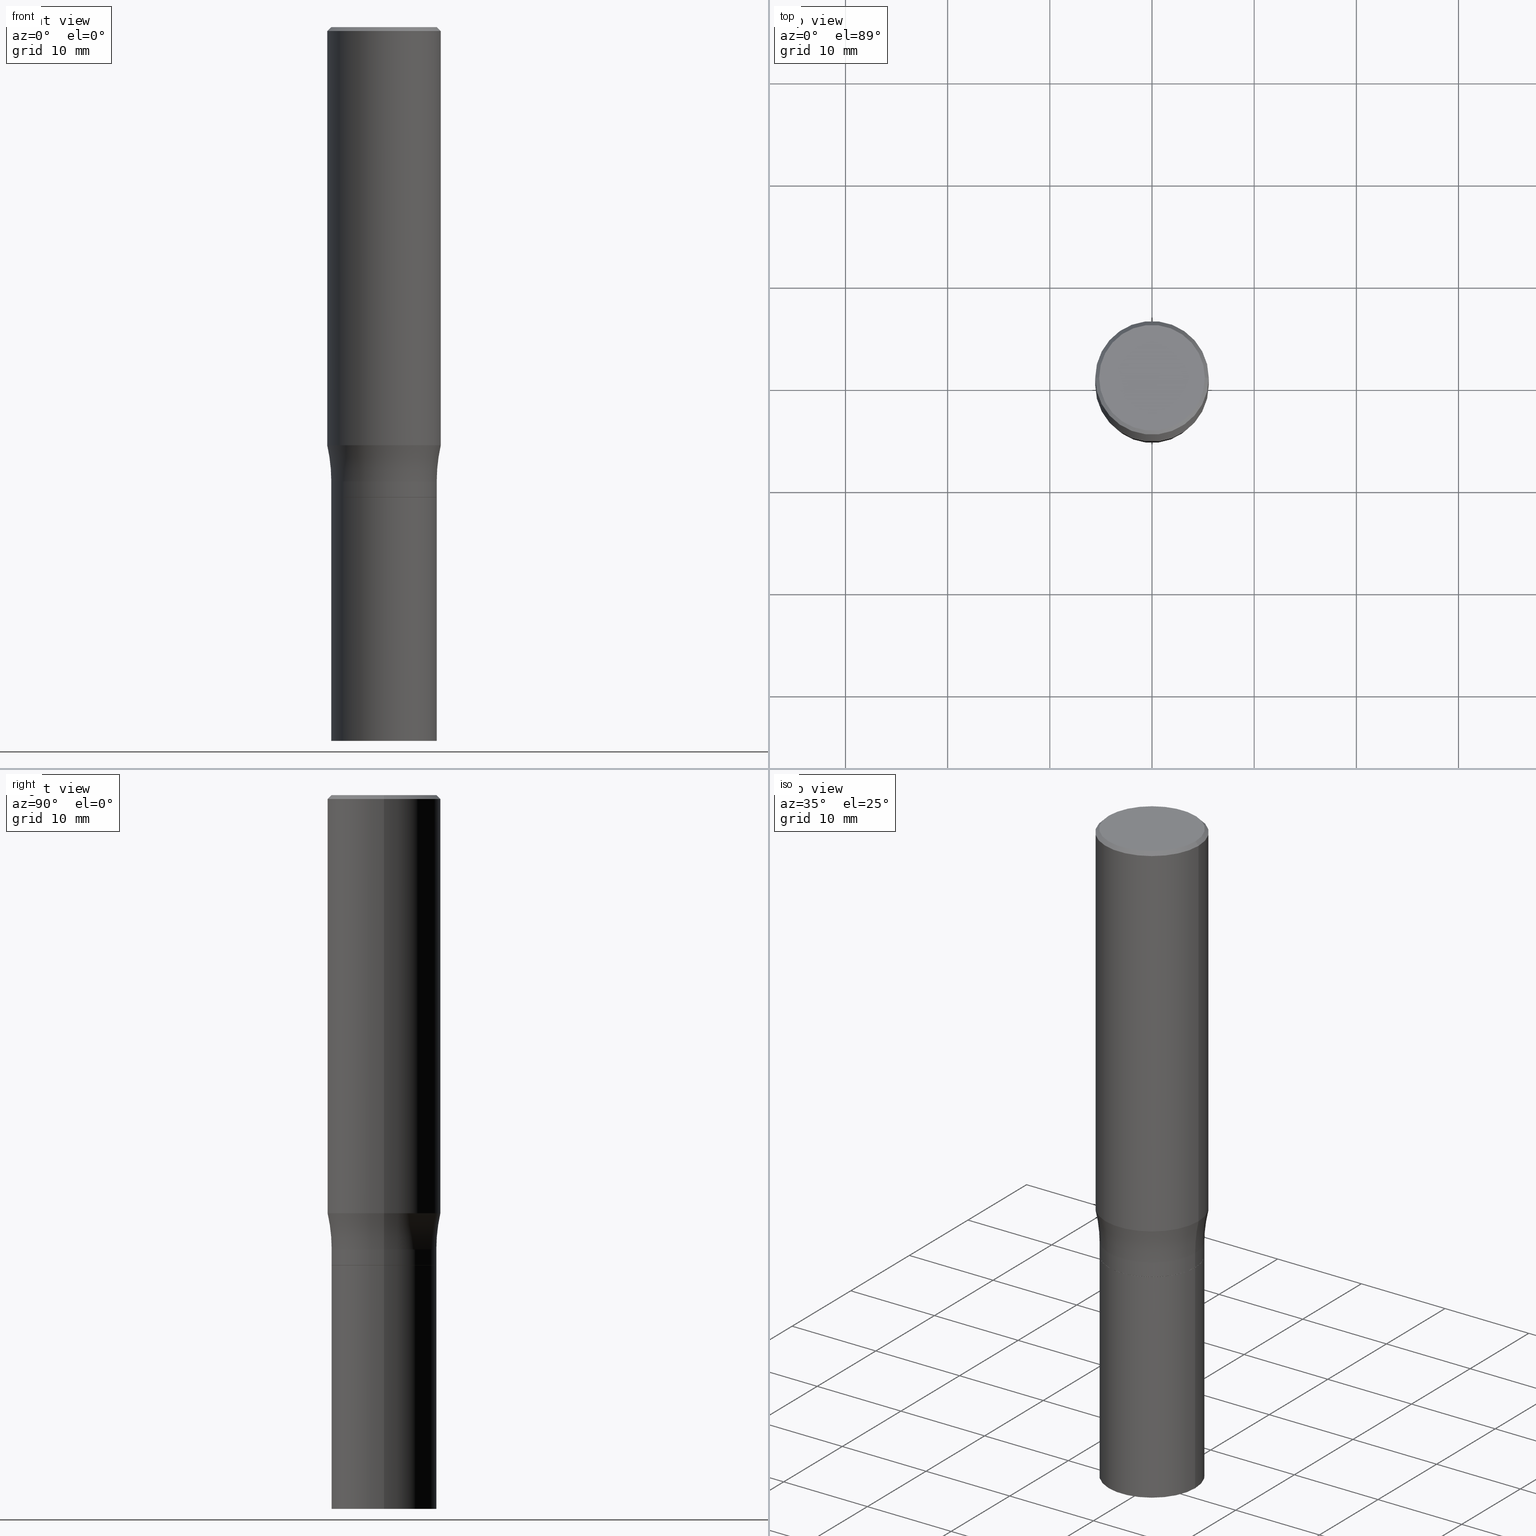
[diagram: canonical four-view strip — front | top / right | iso, engineering-drawing reading convention]
A machine part, canonical four-view strip (front | top / right | iso — engineering-drawing reading convention). The complete STEP part file that produces these views, byte-faithful:
ISO-10303-21;
HEADER;
FILE_DESCRIPTION (( 'STEP AP203' ),
    '1' );
FILE_NAME ('36531.STEP',
    '2024-03-04T15:28:28',
    ( '' ),
    ( '' ),
    'SwSTEP 2.0',
    'SolidWorks 2023',
    '' );
FILE_SCHEMA (( 'CONFIG_CONTROL_DESIGN' ));
ENDSEC;

DATA;
#1 = CC_DESIGN_PERSON_AND_ORGANIZATION_ASSIGNMENT ( #176, #170, ( #276 ) ) ;
#2 = CLOSED_SHELL ( 'NONE', ( #117, #6, #31, #65 ) ) ;
#3 = CONICAL_SURFACE ( 'NONE', #381, 0.2187500000000000000, 0.7853981633974522758 ) ;
#4 = DIRECTION ( 'NONE',  ( -2.445468806185136877E-29, 3.491481338843145188E-15, 1.000000000000000000 ) ) ;
#5 = CARTESIAN_POINT ( 'NONE',  ( 4.431189476807467280E-29, -6.326564185983779791E-15, -1.812000000000000055 ) ) ;
#6 = ADVANCED_FACE ( 'NONE', ( #313 ), #75, .F. ) ;
#7 = CARTESIAN_POINT ( 'NONE',  ( 4.279570410823988484E-29, -6.110092342975504671E-15, -1.750000000000000000 ) ) ;
#8 = DIRECTION ( 'NONE',  ( 1.000000000000000000, -6.982962677686266711E-15, 0.000000000000000000 ) ) ;
#9 = DIRECTION ( 'NONE',  ( -2.445468806185136597E-29, 3.491481338843145583E-15, 1.000000000000000000 ) ) ;
#10 = FACE_OUTER_BOUND ( 'NONE', #425, .T. ) ;
#11 = AXIS2_PLACEMENT_3D ( 'NONE', #187, #265, #194 ) ;
#12 = CIRCLE ( 'NONE', #466, 0.2030999999999999750 ) ;
#13 = LINE ( 'NONE', #224, #209 ) ;
#14 = DIRECTION ( 'NONE',  ( 1.000000000000000000, -6.982962677686266711E-15, 4.883557194083112901E-29 ) ) ;
#15 = EDGE_LOOP ( 'NONE', ( #312, #392, #34, #119 ) ) ;
#16 = DIRECTION ( 'NONE',  ( -0.7071067811865715536, 7.493145998870439357E-15, 0.7071067811865232589 ) ) ;
#17 = ORIENTED_EDGE ( 'NONE', *, *, #394, .F. ) ;
#18 = DIMENSIONAL_EXPONENTS ( 1.000000000000000000, 0.000000000000000000, 0.000000000000000000, 0.000000000000000000, 0.000000000000000000, 0.000000000000000000, 0.000000000000000000 ) ;
#19 = CARTESIAN_POINT ( 'NONE',  ( 0.2030999999999999750, -7.744803905821859777E-15, -1.812000000000000055 ) ) ;
#20 = ORIENTED_EDGE ( 'NONE', *, *, #90, .F. ) ;
#21 = CIRCLE ( 'NONE', #301, 0.2031000000000001970 ) ;
#22 = CIRCLE ( 'NONE', #177, 0.2037499999999999867 ) ;
#23 = ORIENTED_EDGE ( 'NONE', *, *, #291, .F. ) ;
#24 = PERSON_AND_ORGANIZATION ( #95, #86 ) ;
#25 = CYLINDRICAL_SURFACE ( 'NONE', #309, 0.2030999999999999750 ) ;
#26 = COORDINATED_UNIVERSAL_TIME_OFFSET ( 5, 0, .BEHIND. ) ;
#27 = EDGE_CURVE ( 'NONE', #108, #305, #36, .T. ) ;
#28 = FACE_OUTER_BOUND ( 'NONE', #223, .T. ) ;
#29 = CYLINDRICAL_SURFACE ( 'NONE', #230, 0.2031000000000001415 ) ;
#30 = APPROVAL_STATUS ( 'not_yet_approved' ) ;
#31 = ADVANCED_FACE ( 'NONE', ( #467 ), #25, .T. ) ;
#32 = ORIENTED_EDGE ( 'NONE', *, *, #304, .F. ) ;
#33 = APPLICATION_CONTEXT ( 'configuration controlled 3d designs of mechanical parts and assemblies' ) ;
#34 = ORIENTED_EDGE ( 'NONE', *, *, #315, .T. ) ;
#35 = DIRECTION ( 'NONE',  ( -2.445468806185136597E-29, 3.491481338843145583E-15, 1.000000000000000000 ) ) ;
#36 = LINE ( 'NONE', #183, #390 ) ;
#37 = PRODUCT_DEFINITION ( 'UNKNOWN', '', #325, #460 ) ;
#38 = VECTOR ( 'NONE', #161, 39.37007874015748143 ) ;
#39 = DIRECTION ( 'NONE',  ( -2.445468806185136597E-29, 3.491481338843145583E-15, 1.000000000000000000 ) ) ;
#40 = EDGE_CURVE ( 'NONE', #454, #376, #239, .T. ) ;
#41 = DIRECTION ( 'NONE',  ( 1.000000000000000000, -6.982962677686267499E-15, 0.000000000000000000 ) ) ;
#42 = FACE_OUTER_BOUND ( 'NONE', #118, .T. ) ;
#43 = ADVANCED_BREP_SHAPE_REPRESENTATION ( '36531', ( #80, #237, #98 ), #457 ) ;
#44 = AXIS2_PLACEMENT_3D ( 'NONE', #185, #327, #293 ) ;
#45 = LOCAL_TIME ( 10, 28, 28.00000000000000000, #26 ) ;
#46 = DIRECTION ( 'NONE',  ( 1.000000000000000000, -6.982962677686267499E-15, 0.000000000000000000 ) ) ;
#47 = DIRECTION ( 'NONE',  ( 1.000000000000000000, -6.982962677686266711E-15, 4.876176775795935232E-29 ) ) ;
#48 = CARTESIAN_POINT ( 'NONE',  ( 3.668203209277705088E-31, -5.237222008264718399E-17, -0.01499999999999999944 ) ) ;
#49 = CARTESIAN_POINT ( 'NONE',  ( 4.279570410823988484E-29, -6.110092342975504671E-15, -1.750000000000000000 ) ) ;
#50 = ORIENTED_EDGE ( 'NONE', *, *, #281, .T. ) ;
#51 = CC_DESIGN_PERSON_AND_ORGANIZATION_ASSIGNMENT ( #343, #222, ( #37 ) ) ;
#52 = LINE ( 'NONE', #330, #38 ) ;
#53 = CYLINDRICAL_SURFACE ( 'NONE', #401, 0.2187500000000000278 ) ;
#54 = CONICAL_SURFACE ( 'NONE', #138, 0.2025999999999999746, 0.7853981633974824739 ) ;
#55 = CARTESIAN_POINT ( 'NONE',  ( -0.2031000000000001415, 1.443112296328764483E-15, -9.990357168307721209E-30 ) ) ;
#56 = CYLINDRICAL_SURFACE ( 'NONE', #451, 0.2031000000000001415 ) ;
#57 = ORIENTED_EDGE ( 'NONE', *, *, #360, .T. ) ;
#58 = CC_DESIGN_PERSON_AND_ORGANIZATION_ASSIGNMENT ( #24, #354, ( #325 ) ) ;
#59 = ORIENTED_EDGE ( 'NONE', *, *, #243, .F. ) ;
#60 = ADVANCED_FACE ( 'NONE', ( #28 ), #129, .T. ) ;
#61 = PERSON_AND_ORGANIZATION ( #95, #86 ) ;
#62 = AXIS2_PLACEMENT_3D ( 'NONE', #159, #413, #207 ) ;
#63 = LOCAL_TIME ( 10, 28, 28.00000000000000000, #320 ) ;
#64 = EDGE_LOOP ( 'NONE', ( #133, #100, #97, #353 ) ) ;
#65 = ADVANCED_FACE ( 'NONE', ( #408 ), #446, .F. ) ;
#66 = ORIENTED_EDGE ( 'NONE', *, *, #453, .T. ) ;
#67 = SECURITY_CLASSIFICATION_LEVEL ( 'unclassified' ) ;
#68 = ADVANCED_FACE ( 'NONE', ( #166 ), #245, .T. ) ;
#69 = ORIENTED_EDGE ( 'NONE', *, *, #193, .F. ) ;
#70 = CLOSED_SHELL ( 'NONE', ( #149, #461, #60, #210, #352, #192, #322, #206, #225, #82, #68, #415 ) ) ;
#71 = ORIENTED_EDGE ( 'NONE', *, *, #193, .T. ) ;
#72 = APPROVAL_ROLE ( '' ) ;
#73 = EDGE_CURVE ( 'NONE', #199, #395, #128, .T. ) ;
#74 = EDGE_CURVE ( 'NONE', #419, #305, #275, .T. ) ;
#75 = PLANE ( 'NONE',  #380 ) ;
#76 = PRODUCT ( '36531', '36531', '', ( #244 ) ) ;
#77 = FACE_OUTER_BOUND ( 'NONE', #103, .T. ) ;
#78 = CARTESIAN_POINT ( 'NONE',  ( -0.2037499999999999867, 1.448964755619900027E-15, -1.094037480906238857E-16 ) ) ;
#79 = TOROIDAL_SURFACE ( 'NONE', #391, 0.8281000000000000583, 0.6250000000000000000 ) ;
#80 = MANIFOLD_SOLID_BREP ( 'Body-Move/Copy2[1]', #2 ) ;
#81 =( CONVERSION_BASED_UNIT ( 'INCH', #186 ) LENGTH_UNIT ( ) NAMED_UNIT ( #18 ) );
#82 = ADVANCED_FACE ( 'NONE', ( #195 ), #269, .F. ) ;
#83 = DIRECTION ( 'NONE',  ( -2.445468806185136877E-29, 3.491481338843145188E-15, 1.000000000000000000 ) ) ;
#84 = CARTESIAN_POINT ( 'NONE',  ( 0.2030999999999999750, -1.418239719838080578E-15, 9.903515031641544743E-30 ) ) ;
#85 = CIRCLE ( 'NONE', #219, 0.2030999999999999750 ) ;
#86 = ORGANIZATION ( 'UNSPECIFIED', 'UNSPECIFIED', '' ) ;
#87 = PLANE ( 'NONE',  #259 ) ;
#88 = DIRECTION ( 'NONE',  ( 2.438088387897960049E-29, -3.491481338843145188E-15, -1.000000000000000000 ) ) ;
#89 = DIRECTION ( 'NONE',  ( 2.445468806185136597E-29, -3.491481338843145583E-15, -1.000000000000000000 ) ) ;
#90 = EDGE_CURVE ( 'NONE', #454, #93, #131, .T. ) ;
#91 = DIRECTION ( 'NONE',  ( 1.000000000000000000, -6.982962677686266711E-15, 4.876176775795935793E-29 ) ) ;
#92 = CARTESIAN_POINT ( 'NONE',  ( 0.2025999999999999746, -7.741312424483018348E-15, -1.812000000000000277 ) ) ;
#93 = VERTEX_POINT ( 'NONE', #306 ) ;
#94 = DIRECTION ( 'NONE',  ( -2.445468806185136877E-29, 3.491481338843145188E-15, 1.000000000000000000 ) ) ;
#95 = PERSON ( 'UNSPECIFIED', 'UNSPECIFIED', 'UNSPECIFIED', ('UNSPECIFIED'), ('UNSPECIFIED'), ('UNSPECIFIED') ) ;
#96 = AXIS2_PLACEMENT_3D ( 'NONE', #410, #231, #91 ) ;
#97 = ORIENTED_EDGE ( 'NONE', *, *, #291, .T. ) ;
#98 = AXIS2_PLACEMENT_3D ( 'NONE', #154, #297, #220 ) ;
#99 = CARTESIAN_POINT ( 'NONE',  ( -0.2025999999999999746, -4.884355376159706386E-15, -1.812000000000000277 ) ) ;
#100 = ORIENTED_EDGE ( 'NONE', *, *, #294, .T. ) ;
#101 = DATE_TIME_ROLE ( 'creation_date' ) ;
#102 = CARTESIAN_POINT ( 'NONE',  ( 4.431189476807467841E-29, -6.326564185983780580E-15, -1.812000000000000277 ) ) ;
#103 = EDGE_LOOP ( 'NONE', ( #150, #280, #112, #277 ) ) ;
#104 = APPLICATION_PROTOCOL_DEFINITION ( 'international standard', 'config_control_design', 1994, #33 ) ;
#105 = AXIS2_PLACEMENT_3D ( 'NONE', #211, #283, #426 ) ;
#106 = DIRECTION ( 'NONE',  ( -2.445468806185136597E-29, 3.491481338843145583E-15, 1.000000000000000000 ) ) ;
#107 = UNCERTAINTY_MEASURE_WITH_UNIT (LENGTH_MEASURE( 1.000000000000000082E-05 ), #81, 'distance_accuracy_value', 'NONE');
#108 = VERTEX_POINT ( 'NONE', #257 ) ;
#109 = APPROVAL ( #463, 'UNSPECIFIED' ) ;
#110 = CARTESIAN_POINT ( 'NONE',  ( 0.2187500000000000000, -1.553106157095169608E-15, -0.01499999999999999944 ) ) ;
#111 = APPROVAL_DATE_TIME ( #212, #286 ) ;
#112 = ORIENTED_EDGE ( 'NONE', *, *, #200, .F. ) ;
#113 = DATE_AND_TIME ( #351, #130 ) ;
#114 = VERTEX_POINT ( 'NONE', #238 ) ;
#115 = SHAPE_DEFINITION_REPRESENTATION ( #120, #43 ) ;
#116 = VECTOR ( 'NONE', #94, 39.37007874015748143 ) ;
#117 = ADVANCED_FACE ( 'NONE', ( #10 ), #335, .T. ) ;
#118 = EDGE_LOOP ( 'NONE', ( #319, #66, #429, #450 ) ) ;
#119 = ORIENTED_EDGE ( 'NONE', *, *, #243, .T. ) ;
#120 = PRODUCT_DEFINITION_SHAPE ( 'NONE', 'NONE',  #37 ) ;
#121 = EDGE_CURVE ( 'NONE', #199, #181, #329, .T. ) ;
#122 = DIRECTION ( 'NONE',  ( -1.000000000000000000, 7.105427357601001859E-15, 0.000000000000000000 ) ) ;
#123 = FACE_OUTER_BOUND ( 'NONE', #372, .T. ) ;
#124 = DIRECTION ( 'NONE',  ( 1.000000000000000000, -6.982962677686266711E-15, 4.876176775795936353E-29 ) ) ;
#125 = DIRECTION ( 'NONE',  ( 1.000000000000000000, -6.982962677686265922E-15, 4.876176775795935793E-29 ) ) ;
#126 = CARTESIAN_POINT ( 'NONE',  ( 4.429966742404375039E-29, -6.324818445314358287E-15, -1.811500000000000110 ) ) ;
#127 = DIRECTION ( 'NONE',  ( -2.445468806185136597E-29, 3.491481338843145583E-15, 1.000000000000000000 ) ) ;
#128 = LINE ( 'NONE', #266, #423 ) ;
#129 = CONICAL_SURFACE ( 'NONE', #324, 0.2025999999999999746, 0.7853981633974824739 ) ;
#130 = LOCAL_TIME ( 10, 28, 28.00000000000000000, #384 ) ;
#131 = LINE ( 'NONE', #442, #116 ) ;
#132 = DIRECTION ( 'NONE',  ( 0.7071067811865715536, -2.468850131082509496E-15, 0.7071067811865232589 ) ) ;
#133 = ORIENTED_EDGE ( 'NONE', *, *, #180, .F. ) ;
#134 = DIRECTION ( 'NONE',  ( -1.000000000000000000, 6.982962677686266711E-15, 0.000000000000000000 ) ) ;
#135 = EDGE_LOOP ( 'NONE', ( #434, #165, #462, #171 ) ) ;
#136 = EDGE_CURVE ( 'NONE', #292, #419, #52, .T. ) ;
#137 = DIRECTION ( 'NONE',  ( -2.445468806185136597E-29, 3.491481338843145583E-15, 1.000000000000000000 ) ) ;
#138 = AXIS2_PLACEMENT_3D ( 'NONE', #102, #447, #214 ) ;
#139 = APPROVAL_DATE_TIME ( #113, #366 ) ;
#140 = ORIENTED_EDGE ( 'NONE', *, *, #389, .F. ) ;
#141 = FACE_OUTER_BOUND ( 'NONE', #388, .T. ) ;
#142 = EDGE_LOOP ( 'NONE', ( #20, #433, #321, #32 ) ) ;
#143 = DATE_AND_TIME ( #430, #363 ) ;
#144 = AXIS2_PLACEMENT_3D ( 'NONE', #340, #405, #8 ) ;
#145 = ORIENTED_EDGE ( 'NONE', *, *, #74, .T. ) ;
#146 = CALENDAR_DATE ( 2024, 4, 3 ) ;
#147 = EDGE_LOOP ( 'NONE', ( #382, #379, #448, #242 ) ) ;
#148 = DATE_AND_TIME ( #387, #302 ) ;
#149 = ADVANCED_FACE ( 'NONE', ( #77 ), #303, .T. ) ;
#150 = ORIENTED_EDGE ( 'NONE', *, *, #178, .T. ) ;
#151 = ORIENTED_EDGE ( 'NONE', *, *, #182, .F. ) ;
#152 = EDGE_CURVE ( 'NONE', #114, #419, #13, .T. ) ;
#153 = CIRCLE ( 'NONE', #62, 0.2187500000000000278 ) ;
#154 = CARTESIAN_POINT ( 'NONE',  ( 0.000000000000000000, 0.000000000000000000, 0.000000000000000000 ) ) ;
#155 = FACE_OUTER_BOUND ( 'NONE', #15, .T. ) ;
#156 = CARTESIAN_POINT ( 'NONE',  ( 2.675434532353328846E-45, -3.819811448578746494E-31, -1.094037480906138524E-16 ) ) ;
#157 = DIRECTION ( 'NONE',  ( 1.000000000000000000, -6.982962677686265133E-15, 0.000000000000000000 ) ) ;
#158 = PRODUCT_RELATED_PRODUCT_CATEGORY ( 'detail', '', ( #76 ) ) ;
#159 = CARTESIAN_POINT ( 'NONE',  ( 3.939680354633564561E-29, -5.624819422934269766E-15, -1.611012311696323307 ) ) ;
#160 = FACE_OUTER_BOUND ( 'NONE', #246, .T. ) ;
#161 = DIRECTION ( 'NONE',  ( -0.7071067811865503483, 2.468850131082286248E-15, -0.7071067811865446862 ) ) ;
#162 = AXIS2_PLACEMENT_3D ( 'NONE', #435, #217, #258 ) ;
#163 = DIRECTION ( 'NONE',  ( 0.7071067811865503483, -7.319954787623265512E-15, -0.7071067811865446862 ) ) ;
#164 = CARTESIAN_POINT ( 'NONE',  ( -0.2030999999999999750, -6.520956637572451722E-15, -2.750000000000000000 ) ) ;
#165 = ORIENTED_EDGE ( 'NONE', *, *, #213, .T. ) ;
#166 = FACE_OUTER_BOUND ( 'NONE', #339, .T. ) ;
#167 = ORIENTED_EDGE ( 'NONE', *, *, #90, .T. ) ;
#168 = EDGE_CURVE ( 'NONE', #290, #305, #375, .T. ) ;
#169 = ORIENTED_EDGE ( 'NONE', *, *, #136, .T. ) ;
#170 = PERSON_AND_ORGANIZATION_ROLE ( 'classification_officer' ) ;
#171 = ORIENTED_EDGE ( 'NONE', *, *, #74, .F. ) ;
#172 = PERSON_AND_ORGANIZATION ( #95, #86 ) ;
#173 = DIRECTION ( 'NONE',  ( -2.445468806185136597E-29, 3.491481338843145583E-15, 1.000000000000000000 ) ) ;
#174 = DIRECTION ( 'NONE',  ( -2.438088387897960049E-29, 3.491481338843145188E-15, 1.000000000000000000 ) ) ;
#175 = VECTOR ( 'NONE', #398, 39.37007874015748143 ) ;
#176 = PERSON_AND_ORGANIZATION ( #95, #86 ) ;
#177 = AXIS2_PLACEMENT_3D ( 'NONE', #406, #409, #236 ) ;
#178 = EDGE_CURVE ( 'NONE', #108, #114, #153, .T. ) ;
#179 = CARTESIAN_POINT ( 'NONE',  ( 4.431189476807467841E-29, -6.326564185983780580E-15, -1.812000000000000277 ) ) ;
#180 = EDGE_CURVE ( 'NONE', #395, #455, #190, .T. ) ;
#181 = VERTEX_POINT ( 'NONE', #368 ) ;
#182 = EDGE_CURVE ( 'NONE', #181, #199, #229, .T. ) ;
#183 = CARTESIAN_POINT ( 'NONE',  ( 0.2187500000000000278, -1.527523085743871040E-15, 1.066663669705361025E-29 ) ) ;
#184 = DIRECTION ( 'NONE',  ( -2.445468806185136597E-29, 3.491481338843145583E-15, 1.000000000000000000 ) ) ;
#185 = CARTESIAN_POINT ( 'NONE',  ( 4.429966742404375039E-29, -6.324818445314358287E-15, -1.811500000000000110 ) ) ;
#186 = LENGTH_MEASURE_WITH_UNIT ( LENGTH_MEASURE( 0.02539999999999999897 ), #262 );
#187 = CARTESIAN_POINT ( 'NONE',  ( 4.279570410823988484E-29, -6.110092342975504671E-15, -1.750000000000000000 ) ) ;
#188 = AXIS2_PLACEMENT_3D ( 'NONE', #440, #357, #41 ) ;
#189 = APPROVAL_PERSON_ORGANIZATION ( #345, #286, #72 ) ;
#190 = LINE ( 'NONE', #55, #431 ) ;
#191 = DIRECTION ( 'NONE',  ( 1.000000000000000000, -6.982962677686266711E-15, 4.875065411617369217E-29 ) ) ;
#192 = ADVANCED_FACE ( 'NONE', ( #155 ), #399, .F. ) ;
#193 = EDGE_CURVE ( 'NONE', #221, #395, #21, .T. ) ;
#194 = DIRECTION ( 'NONE',  ( 1.000000000000000000, -6.982962677686265133E-15, 0.000000000000000000 ) ) ;
#195 = FACE_OUTER_BOUND ( 'NONE', #218, .T. ) ;
#196 = CARTESIAN_POINT ( 'NONE',  ( -0.2031000000000001970, -4.774343097816166799E-15, -1.811500000000000110 ) ) ;
#197 = CARTESIAN_POINT ( 'NONE',  ( 1.422778645578576487E-15, 0.2037499999999999867, -7.660911968345976720E-16 ) ) ;
#198 = DIRECTION ( 'NONE',  ( 1.000000000000000000, -6.982962677686265922E-15, 0.000000000000000000 ) ) ;
#199 = VERTEX_POINT ( 'NONE', #99 ) ;
#200 = EDGE_CURVE ( 'NONE', #305, #419, #202, .T. ) ;
#201 = DIRECTION ( 'NONE',  ( -2.445468806185136597E-29, 3.491481338843145583E-15, 1.000000000000000000 ) ) ;
#202 = CIRCLE ( 'NONE', #456, 0.2187500000000000000 ) ;
#203 = DIRECTION ( 'NONE',  ( -2.445468806185136877E-29, 3.491481338843145188E-15, 1.000000000000000000 ) ) ;
#204 = AXIS2_PLACEMENT_3D ( 'NONE', #48, #445, #134 ) ;
#205 = CIRCLE ( 'NONE', #374, 0.6250000000000000000 ) ;
#206 = ADVANCED_FACE ( 'NONE', ( #418 ), #54, .T. ) ;
#207 = DIRECTION ( 'NONE',  ( 1.000000000000000000, -6.982962677686266711E-15, 0.000000000000000000 ) ) ;
#208 = ORIENTED_EDGE ( 'NONE', *, *, #182, .T. ) ;
#209 = VECTOR ( 'NONE', #83, 39.37007874015748143 ) ;
#210 = ADVANCED_FACE ( 'NONE', ( #141 ), #56, .T. ) ;
#211 = CARTESIAN_POINT ( 'NONE',  ( 4.431189476807467280E-29, -6.326564185983779791E-15, -1.812000000000000055 ) ) ;
#212 = DATE_AND_TIME ( #452, #63 ) ;
#213 = EDGE_CURVE ( 'NONE', #114, #108, #349, .T. ) ;
#214 = DIRECTION ( 'NONE',  ( 1.000000000000000000, -6.982962677686267499E-15, 0.000000000000000000 ) ) ;
#215 = VERTEX_POINT ( 'NONE', #19 ) ;
#216 = DIRECTION ( 'NONE',  ( 1.000000000000000000, -6.982962677686266711E-15, 4.876176775795935793E-29 ) ) ;
#217 = DIRECTION ( 'NONE',  ( -6.982962677686266711E-15, -1.000000000000000000, 3.491481338843145583E-15 ) ) ;
#218 = EDGE_LOOP ( 'NONE', ( #271, #464 ) ) ;
#219 = AXIS2_PLACEMENT_3D ( 'NONE', #298, #39, #356 ) ;
#220 = DIRECTION ( 'NONE',  ( 1.000000000000000000, 0.000000000000000000, 0.000000000000000000 ) ) ;
#221 = VERTEX_POINT ( 'NONE', #296 ) ;
#222 = PERSON_AND_ORGANIZATION_ROLE ( 'creator' ) ;
#223 = EDGE_LOOP ( 'NONE', ( #208, #273, #69, #420 ) ) ;
#224 = CARTESIAN_POINT ( 'NONE',  ( -0.2187500000000000278, 1.554312234475219354E-15, -1.076017050993260762E-29 ) ) ;
#225 = ADVANCED_FACE ( 'NONE', ( #123 ), #87, .F. ) ;
#226 = CIRCLE ( 'NONE', #432, 0.2037499999999999867 ) ;
#227 =( NAMED_UNIT ( * ) SI_UNIT ( $, .STERADIAN. ) SOLID_ANGLE_UNIT ( ) );
#228 = CARTESIAN_POINT ( 'NONE',  ( -0.2187500000000000000, 1.475150865661223567E-15, -0.01499999999999999944 ) ) ;
#229 = CIRCLE ( 'NONE', #188, 0.2025999999999999746 ) ;
#230 = AXIS2_PLACEMENT_3D ( 'NONE', #411, #441, #124 ) ;
#231 = DIRECTION ( 'NONE',  ( -2.445468806185136597E-29, 3.491481338843145583E-15, 1.000000000000000000 ) ) ;
#232 = LINE ( 'NONE', #92, #310 ) ;
#233 = EDGE_CURVE ( 'NONE', #455, #341, #316, .T. ) ;
#234 = CARTESIAN_POINT ( 'NONE',  ( 0.2187500000000000000, -1.553106157095169608E-15, -0.01499999999999999944 ) ) ;
#235 = DIRECTION ( 'NONE',  ( -2.445468806185136597E-29, 3.491481338843145583E-15, 1.000000000000000000 ) ) ;
#236 = DIRECTION ( 'NONE',  ( 1.000000000000000000, -6.982962677686266711E-15, 4.875065411617369217E-29 ) ) ;
#237 = MANIFOLD_SOLID_BREP ( 'Body-Move/Copy2[2]', #70 ) ;
#238 = CARTESIAN_POINT ( 'NONE',  ( -0.2187500000000000278, -4.070507188459050610E-15, -1.611012311696323307 ) ) ;
#239 = CIRCLE ( 'NONE', #336, 0.2030999999999999750 ) ;
#240 = CARTESIAN_POINT ( 'NONE',  ( 3.668203209277705088E-31, -5.237222008264718399E-17, -0.01499999999999999944 ) ) ;
#241 = DIRECTION ( 'NONE',  ( 1.000000000000000000, -6.982962677686266711E-15, 0.000000000000000000 ) ) ;
#242 = ORIENTED_EDGE ( 'NONE', *, *, #294, .F. ) ;
#243 = EDGE_CURVE ( 'NONE', #341, #455, #373, .T. ) ;
#244 = MECHANICAL_CONTEXT ( 'NONE', #33, 'mechanical' ) ;
#245 = CONICAL_SURFACE ( 'NONE', #204, 0.2187500000000000000, 0.7853981633974522758 ) ;
#246 = EDGE_LOOP ( 'NONE', ( #17, #282, #350, #421 ) ) ;
#247 = CC_DESIGN_APPROVAL ( #109, ( #325 ) ) ;
#248 = APPROVAL_DATE_TIME ( #148, #109 ) ;
#249 = DIRECTION ( 'NONE',  ( 1.000000000000000000, -6.982962677686266711E-15, 4.876176775795936353E-29 ) ) ;
#250 = ORIENTED_EDGE ( 'NONE', *, *, #168, .F. ) ;
#251 = DATE_AND_TIME ( #146, #45 ) ;
#252 = ORIENTED_EDGE ( 'NONE', *, *, #404, .F. ) ;
#253 = DIRECTION ( 'NONE',  ( 1.000000000000000000, -6.982962677686265922E-15, 4.876176775795935793E-29 ) ) ;
#254 = AXIS2_PLACEMENT_3D ( 'NONE', #7, #184, #157 ) ;
#255 = ORIENTED_EDGE ( 'NONE', *, *, #180, .T. ) ;
#256 = CC_DESIGN_DATE_AND_TIME_ASSIGNMENT ( #251, #101, ( #37 ) ) ;
#257 = CARTESIAN_POINT ( 'NONE',  ( 0.2187500000000000278, -7.152342508678141398E-15, -1.611012311696323307 ) ) ;
#258 = DIRECTION ( 'NONE',  ( 1.000000000000000000, -6.982962677686265133E-15, 0.000000000000000000 ) ) ;
#259 = AXIS2_PLACEMENT_3D ( 'NONE', #361, #332, #125 ) ;
#260 = VECTOR ( 'NONE', #203, 39.37007874015748143 ) ;
#261 = APPROVAL_PERSON_ORGANIZATION ( #314, #109, #428 ) ;
#262 =( LENGTH_UNIT ( ) NAMED_UNIT ( * ) SI_UNIT ( $, .METRE. ) );
#263 = CARTESIAN_POINT ( 'NONE',  ( 0.2037499999999999867, -1.475466312070559866E-15, -1.094037480906037204E-16 ) ) ;
#264 = DIRECTION ( 'NONE',  ( -2.445468806185136597E-29, 3.491481338843145583E-15, 1.000000000000000000 ) ) ;
#265 = DIRECTION ( 'NONE',  ( -2.445468806185136597E-29, 3.491481338843145583E-15, 1.000000000000000000 ) ) ;
#266 = CARTESIAN_POINT ( 'NONE',  ( -0.2025999999999999746, -4.887004603333818376E-15, -1.812000000000000277 ) ) ;
#267 = LINE ( 'NONE', #84, #260 ) ;
#268 = AXIS2_PLACEMENT_3D ( 'NONE', #197, #88, #370 ) ;
#269 = PLANE ( 'NONE',  #268 ) ;
#270 = DIRECTION ( 'NONE',  ( -1.000000000000000000, 6.982962677686265922E-15, -4.876176775795935793E-29 ) ) ;
#271 = ORIENTED_EDGE ( 'NONE', *, *, #404, .T. ) ;
#272 = CARTESIAN_POINT ( 'NONE',  ( 0.000000000000000000, 0.000000000000000000, 0.000000000000000000 ) ) ;
#273 = ORIENTED_EDGE ( 'NONE', *, *, #73, .T. ) ;
#274 = DIRECTION ( 'NONE',  ( 1.000000000000000000, -6.982962677686267499E-15, 0.000000000000000000 ) ) ;
#275 = CIRCLE ( 'NONE', #144, 0.2187500000000000000 ) ;
#276 = SECURITY_CLASSIFICATION ( '', '', #67 ) ;
#277 = ORIENTED_EDGE ( 'NONE', *, *, #27, .F. ) ;
#278 = CC_DESIGN_PERSON_AND_ORGANIZATION_ASSIGNMENT ( #61, #393, ( #76 ) ) ;
#279 = ORIENTED_EDGE ( 'NONE', *, *, #360, .F. ) ;
#280 = ORIENTED_EDGE ( 'NONE', *, *, #152, .T. ) ;
#281 = EDGE_CURVE ( 'NONE', #376, #454, #85, .T. ) ;
#282 = ORIENTED_EDGE ( 'NONE', *, *, #168, .T. ) ;
#283 = DIRECTION ( 'NONE',  ( -2.445468806185136597E-29, 3.491481338843145583E-15, 1.000000000000000000 ) ) ;
#284 = COORDINATED_UNIVERSAL_TIME_OFFSET ( 5, 0, .BEHIND. ) ;
#285 = CARTESIAN_POINT ( 'NONE',  ( 0.000000000000000000, 0.000000000000000000, 0.000000000000000000 ) ) ;
#286 = APPROVAL ( #459, 'UNSPECIFIED' ) ;
#287 = APPROVAL_ROLE ( '' ) ;
#288 = ORIENTED_EDGE ( 'NONE', *, *, #40, .F. ) ;
#289 = PERSON_AND_ORGANIZATION_ROLE ( 'design_supplier' ) ;
#290 = VERTEX_POINT ( 'NONE', #263 ) ;
#291 = EDGE_CURVE ( 'NONE', #221, #341, #326, .T. ) ;
#292 = VERTEX_POINT ( 'NONE', #78 ) ;
#293 = DIRECTION ( 'NONE',  ( 1.000000000000000000, -6.982962677686267499E-15, 0.000000000000000000 ) ) ;
#294 = EDGE_CURVE ( 'NONE', #395, #221, #407, .T. ) ;
#295 = AXIS2_PLACEMENT_3D ( 'NONE', #299, #137, #378 ) ;
#296 = CARTESIAN_POINT ( 'NONE',  ( 0.2031000000000001970, -7.743058165152440640E-15, -1.811500000000000110 ) ) ;
#297 = DIRECTION ( 'NONE',  ( 0.000000000000000000, 0.000000000000000000, 1.000000000000000000 ) ) ;
#298 = CARTESIAN_POINT ( 'NONE',  ( 6.725039217009124520E-29, -9.601573681818649859E-15, -2.750000000000000000 ) ) ;
#299 = CARTESIAN_POINT ( 'NONE',  ( 4.279570410823988484E-29, -6.110092342975504671E-15, -1.750000000000000000 ) ) ;
#300 = CARTESIAN_POINT ( 'NONE',  ( 0.2030999999999999750, -1.101981340165673142E-14, -2.750000000000000000 ) ) ;
#301 = AXIS2_PLACEMENT_3D ( 'NONE', #126, #417, #274 ) ;
#302 = LOCAL_TIME ( 10, 28, 28.00000000000000000, #422 ) ;
#303 = CYLINDRICAL_SURFACE ( 'NONE', #400, 0.2187500000000000278 ) ;
#304 = EDGE_CURVE ( 'NONE', #93, #215, #465, .T. ) ;
#305 = VERTEX_POINT ( 'NONE', #110 ) ;
#306 = CARTESIAN_POINT ( 'NONE',  ( -0.2030999999999999750, -6.520956637572451722E-15, -1.812000000000000055 ) ) ;
#307 = DIRECTION ( 'NONE',  ( 1.000000000000000000, -6.982962677686267499E-15, 0.000000000000000000 ) ) ;
#308 = CARTESIAN_POINT ( 'NONE',  ( 3.939680354633564561E-29, -5.624819422934269766E-15, -1.611012311696323307 ) ) ;
#309 = AXIS2_PLACEMENT_3D ( 'NONE', #285, #173, #216 ) ;
#310 = VECTOR ( 'NONE', #132, 39.37007874015748854 ) ;
#311 = PERSON_AND_ORGANIZATION ( #95, #86 ) ;
#312 = ORIENTED_EDGE ( 'NONE', *, *, #453, .F. ) ;
#313 = FACE_OUTER_BOUND ( 'NONE', #412, .T. ) ;
#314 = PERSON_AND_ORGANIZATION ( #95, #86 ) ;
#315 = EDGE_CURVE ( 'NONE', #108, #341, #358, .T. ) ;
#316 = CIRCLE ( 'NONE', #11, 0.2031000000000001415 ) ;
#317 = ORIENTED_EDGE ( 'NONE', *, *, #304, .T. ) ;
#318 = APPLICATION_PROTOCOL_DEFINITION ( 'international standard', 'config_control_design', 1994, #367 ) ;
#319 = ORIENTED_EDGE ( 'NONE', *, *, #213, .F. ) ;
#320 = COORDINATED_UNIVERSAL_TIME_OFFSET ( 5, 0, .BEHIND. ) ;
#321 = ORIENTED_EDGE ( 'NONE', *, *, #389, .T. ) ;
#322 = ADVANCED_FACE ( 'NONE', ( #347 ), #29, .T. ) ;
#323 = DIRECTION ( 'NONE',  ( -2.445468806185136877E-29, 3.491481338843145188E-15, 1.000000000000000000 ) ) ;
#324 = AXIS2_PLACEMENT_3D ( 'NONE', #179, #235, #307 ) ;
#325 = PRODUCT_DEFINITION_FORMATION_WITH_SPECIFIED_SOURCE ( 'ANY', '', #76, .NOT_KNOWN. ) ;
#326 = LINE ( 'NONE', #468, #175 ) ;
#327 = DIRECTION ( 'NONE',  ( -2.445468806185136597E-29, 3.491481338843145583E-15, 1.000000000000000000 ) ) ;
#328 = DIRECTION ( 'NONE',  ( -1.000000000000000000, 6.982962677686266711E-15, 0.000000000000000000 ) ) ;
#329 = CIRCLE ( 'NONE', #438, 0.2025999999999999746 ) ;
#330 = CARTESIAN_POINT ( 'NONE',  ( -0.2187500000000000000, 1.475150865661223567E-15, -0.01499999999999999944 ) ) ;
#331 = CARTESIAN_POINT ( 'NONE',  ( 3.668203209277705088E-31, -5.237222008264718399E-17, -0.01499999999999999944 ) ) ;
#332 = DIRECTION ( 'NONE',  ( -2.438088387897960049E-29, 3.491481338843145188E-15, 1.000000000000000000 ) ) ;
#333 = DIRECTION ( 'NONE',  ( 2.438088387897960049E-29, -3.491481338843145188E-15, -1.000000000000000000 ) ) ;
#334 = CARTESIAN_POINT ( 'NONE',  ( -0.2031000000000001415, -4.368743617552894511E-15, -1.750000000000000000 ) ) ;
#335 = CYLINDRICAL_SURFACE ( 'NONE', #96, 0.2030999999999999750 ) ;
#336 = AXIS2_PLACEMENT_3D ( 'NONE', #427, #386, #346 ) ;
#337 = DIRECTION ( 'NONE',  ( 1.000000000000000000, -6.982962677686266711E-15, 4.876176775795935232E-29 ) ) ;
#338 = DIRECTION ( 'NONE',  ( -2.445468806185136597E-29, 3.491481338843145583E-15, 1.000000000000000000 ) ) ;
#339 = EDGE_LOOP ( 'NONE', ( #250, #252, #169, #145 ) ) ;
#340 = CARTESIAN_POINT ( 'NONE',  ( 3.668203209277705088E-31, -5.237222008264718399E-17, -0.01499999999999999944 ) ) ;
#341 = VERTEX_POINT ( 'NONE', #371 ) ;
#342 = CC_DESIGN_APPROVAL ( #366, ( #276 ) ) ;
#343 = PERSON_AND_ORGANIZATION ( #95, #86 ) ;
#344 = EDGE_LOOP ( 'NONE', ( #57, #317 ) ) ;
#345 = PERSON_AND_ORGANIZATION ( #95, #86 ) ;
#346 = DIRECTION ( 'NONE',  ( 1.000000000000000000, -6.982962677686265922E-15, 0.000000000000000000 ) ) ;
#347 = FACE_OUTER_BOUND ( 'NONE', #64, .T. ) ;
#348 = DATE_TIME_ROLE ( 'classification_date' ) ;
#349 = CIRCLE ( 'NONE', #416, 0.2187500000000000278 ) ;
#350 = ORIENTED_EDGE ( 'NONE', *, *, #200, .T. ) ;
#351 = CALENDAR_DATE ( 2024, 4, 3 ) ;
#352 = ADVANCED_FACE ( 'NONE', ( #42 ), #79, .F. ) ;
#353 = ORIENTED_EDGE ( 'NONE', *, *, #233, .F. ) ;
#354 = PERSON_AND_ORGANIZATION_ROLE ( 'creator' ) ;
#355 = CARTESIAN_POINT ( 'NONE',  ( 6.701997613956303362E-29, -9.634570568836892220E-15, -2.750000000000000000 ) ) ;
#356 = DIRECTION ( 'NONE',  ( 1.000000000000000000, -6.982962677686265922E-15, 0.000000000000000000 ) ) ;
#357 = DIRECTION ( 'NONE',  ( -2.445468806185136597E-29, 3.491481338843145583E-15, 1.000000000000000000 ) ) ;
#358 = CIRCLE ( 'NONE', #162, 0.6250000000000000000 ) ;
#359 = CC_DESIGN_SECURITY_CLASSIFICATION ( #276, ( #325 ) ) ;
#360 = EDGE_CURVE ( 'NONE', #215, #93, #12, .T. ) ;
#361 = CARTESIAN_POINT ( 'NONE',  ( 4.431189476807467841E-29, -6.326564185983780580E-15, -1.812000000000000277 ) ) ;
#362 = VECTOR ( 'NONE', #163, 39.37007874015748143 ) ;
#363 = LOCAL_TIME ( 10, 28, 28.00000000000000000, #284 ) ;
#364 = DIRECTION ( 'NONE',  ( -2.445468806185136597E-29, 3.491481338843145583E-15, 1.000000000000000000 ) ) ;
#365 = CARTESIAN_POINT ( 'NONE',  ( 0.000000000000000000, 0.000000000000000000, 0.000000000000000000 ) ) ;
#366 = APPROVAL ( #30, 'UNSPECIFIED' ) ;
#367 = APPLICATION_CONTEXT ( 'configuration controlled 3d designs of mechanical parts and assemblies' ) ;
#368 = CARTESIAN_POINT ( 'NONE',  ( 0.2025999999999999746, -7.741312424483018348E-15, -1.812000000000000277 ) ) ;
#369 =( NAMED_UNIT ( * ) PLANE_ANGLE_UNIT ( ) SI_UNIT ( $, .RADIAN. ) );
#370 = DIRECTION ( 'NONE',  ( -1.000000000000000000, 6.982962677686265922E-15, -4.876176775795935793E-29 ) ) ;
#371 = CARTESIAN_POINT ( 'NONE',  ( 0.2031000000000001415, -7.528332062813585446E-15, -1.750000000000000000 ) ) ;
#372 = EDGE_LOOP ( 'NONE', ( #151, #458 ) ) ;
#373 = CIRCLE ( 'NONE', #254, 0.2031000000000001415 ) ;
#374 = AXIS2_PLACEMENT_3D ( 'NONE', #437, #403, #122 ) ;
#375 = LINE ( 'NONE', #234, #362 ) ;
#376 = VERTEX_POINT ( 'NONE', #300 ) ;
#377 = EDGE_CURVE ( 'NONE', #181, #221, #232, .T. ) ;
#378 = DIRECTION ( 'NONE',  ( 1.000000000000000000, -6.982962677686266711E-15, 4.883557194083112901E-29 ) ) ;
#379 = ORIENTED_EDGE ( 'NONE', *, *, #121, .T. ) ;
#380 = AXIS2_PLACEMENT_3D ( 'NONE', #355, #174, #253 ) ;
#381 = AXIS2_PLACEMENT_3D ( 'NONE', #331, #89, #328 ) ;
#382 = ORIENTED_EDGE ( 'NONE', *, *, #73, .F. ) ;
#383 = CC_DESIGN_DATE_AND_TIME_ASSIGNMENT ( #143, #348, ( #276 ) ) ;
#384 = COORDINATED_UNIVERSAL_TIME_OFFSET ( 5, 0, .BEHIND. ) ;
#385 = DIRECTION ( 'NONE',  ( -2.445468806185136597E-29, 3.491481338843145583E-15, 1.000000000000000000 ) ) ;
#386 = DIRECTION ( 'NONE',  ( -2.445468806185136597E-29, 3.491481338843145583E-15, 1.000000000000000000 ) ) ;
#387 = CALENDAR_DATE ( 2024, 4, 3 ) ;
#388 = EDGE_LOOP ( 'NONE', ( #71, #255, #59, #23 ) ) ;
#389 = EDGE_CURVE ( 'NONE', #376, #215, #267, .T. ) ;
#390 = VECTOR ( 'NONE', #323, 39.37007874015748143 ) ;
#391 = AXIS2_PLACEMENT_3D ( 'NONE', #49, #9, #14 ) ;
#392 = ORIENTED_EDGE ( 'NONE', *, *, #178, .F. ) ;
#393 = PERSON_AND_ORGANIZATION_ROLE ( 'design_owner' ) ;
#394 = EDGE_CURVE ( 'NONE', #290, #292, #22, .T. ) ;
#395 = VERTEX_POINT ( 'NONE', #196 ) ;
#396 = DIRECTION ( 'NONE',  ( 1.000000000000000000, -6.982962677686266711E-15, 0.000000000000000000 ) ) ;
#397 = CARTESIAN_POINT ( 'NONE',  ( 1.418239719838124951E-15, 0.2030999999999936745, -1.812000000000000721 ) ) ;
#398 = DIRECTION ( 'NONE',  ( -2.445468806185136877E-29, 3.491481338843145188E-15, 1.000000000000000000 ) ) ;
#399 = TOROIDAL_SURFACE ( 'NONE', #295, 0.8281000000000000583, 0.6250000000000000000 ) ;
#400 = AXIS2_PLACEMENT_3D ( 'NONE', #272, #201, #337 ) ;
#401 = AXIS2_PLACEMENT_3D ( 'NONE', #365, #264, #47 ) ;
#402 = FACE_OUTER_BOUND ( 'NONE', #135, .T. ) ;
#403 = DIRECTION ( 'NONE',  ( 7.105427357601001859E-15, 1.000000000000000000, -3.491481338843145583E-15 ) ) ;
#404 = EDGE_CURVE ( 'NONE', #292, #290, #226, .T. ) ;
#405 = DIRECTION ( 'NONE',  ( -2.445468806185136597E-29, 3.491481338843145583E-15, 1.000000000000000000 ) ) ;
#406 = CARTESIAN_POINT ( 'NONE',  ( 2.675434532353328846E-45, -3.819811448578746494E-31, -1.094037480906138524E-16 ) ) ;
#407 = CIRCLE ( 'NONE', #44, 0.2031000000000001970 ) ;
#408 = FACE_OUTER_BOUND ( 'NONE', #344, .T. ) ;
#409 = DIRECTION ( 'NONE',  ( -2.445468806185136597E-29, 3.491481338843145583E-15, 1.000000000000000000 ) ) ;
#410 = CARTESIAN_POINT ( 'NONE',  ( 0.000000000000000000, 0.000000000000000000, 0.000000000000000000 ) ) ;
#411 = CARTESIAN_POINT ( 'NONE',  ( 0.000000000000000000, 0.000000000000000000, 0.000000000000000000 ) ) ;
#412 = EDGE_LOOP ( 'NONE', ( #414, #288 ) ) ;
#413 = DIRECTION ( 'NONE',  ( -2.445468806185136597E-29, 3.491481338843145583E-15, 1.000000000000000000 ) ) ;
#414 = ORIENTED_EDGE ( 'NONE', *, *, #281, .F. ) ;
#415 = ADVANCED_FACE ( 'NONE', ( #402 ), #53, .T. ) ;
#416 = AXIS2_PLACEMENT_3D ( 'NONE', #308, #385, #241 ) ;
#417 = DIRECTION ( 'NONE',  ( -2.445468806185136597E-29, 3.491481338843145583E-15, 1.000000000000000000 ) ) ;
#418 = FACE_OUTER_BOUND ( 'NONE', #147, .T. ) ;
#419 = VERTEX_POINT ( 'NONE', #228 ) ;
#420 = ORIENTED_EDGE ( 'NONE', *, *, #377, .F. ) ;
#421 = ORIENTED_EDGE ( 'NONE', *, *, #136, .F. ) ;
#422 = COORDINATED_UNIVERSAL_TIME_OFFSET ( 5, 0, .BEHIND. ) ;
#423 = VECTOR ( 'NONE', #16, 39.37007874015748854 ) ;
#424 = CARTESIAN_POINT ( 'NONE',  ( 0.000000000000000000, 0.000000000000000000, 0.000000000000000000 ) ) ;
#425 = EDGE_LOOP ( 'NONE', ( #50, #167, #279, #140 ) ) ;
#426 = DIRECTION ( 'NONE',  ( 1.000000000000000000, -6.982962677686265922E-15, 0.000000000000000000 ) ) ;
#427 = CARTESIAN_POINT ( 'NONE',  ( 6.725039217009124520E-29, -9.601573681818649859E-15, -2.750000000000000000 ) ) ;
#428 = APPROVAL_ROLE ( '' ) ;
#429 = ORIENTED_EDGE ( 'NONE', *, *, #233, .T. ) ;
#430 = CALENDAR_DATE ( 2024, 4, 3 ) ;
#431 = VECTOR ( 'NONE', #4, 39.37007874015748143 ) ;
#432 = AXIS2_PLACEMENT_3D ( 'NONE', #156, #338, #191 ) ;
#433 = ORIENTED_EDGE ( 'NONE', *, *, #40, .T. ) ;
#434 = ORIENTED_EDGE ( 'NONE', *, *, #152, .F. ) ;
#435 = CARTESIAN_POINT ( 'NONE',  ( 0.8281000000000000583, -1.189268373636750372E-14, -1.750000000000000000 ) ) ;
#436 = CC_DESIGN_PERSON_AND_ORGANIZATION_ASSIGNMENT ( #311, #289, ( #325 ) ) ;
#437 = CARTESIAN_POINT ( 'NONE',  ( -0.8281000000000000583, -2.260879481461139275E-16, -1.750000000000000000 ) ) ;
#438 = AXIS2_PLACEMENT_3D ( 'NONE', #449, #364, #46 ) ;
#439 = APPROVAL_PERSON_ORGANIZATION ( #172, #366, #287 ) ;
#440 = CARTESIAN_POINT ( 'NONE',  ( 4.431189476807467841E-29, -6.326564185983780580E-15, -1.812000000000000277 ) ) ;
#441 = DIRECTION ( 'NONE',  ( -2.445468806185136597E-29, 3.491481338843145583E-15, 1.000000000000000000 ) ) ;
#442 = CARTESIAN_POINT ( 'NONE',  ( -0.2030999999999999750, 1.443112296328763300E-15, -9.990357168307712801E-30 ) ) ;
#443 = AXIS2_PLACEMENT_3D ( 'NONE', #397, #333, #270 ) ;
#444 = CC_DESIGN_APPROVAL ( #286, ( #37 ) ) ;
#445 = DIRECTION ( 'NONE',  ( 2.445468806185136597E-29, -3.491481338843145583E-15, -1.000000000000000000 ) ) ;
#446 = PLANE ( 'NONE',  #443 ) ;
#447 = DIRECTION ( 'NONE',  ( -2.445468806185136597E-29, 3.491481338843145583E-15, 1.000000000000000000 ) ) ;
#448 = ORIENTED_EDGE ( 'NONE', *, *, #377, .T. ) ;
#449 = CARTESIAN_POINT ( 'NONE',  ( 4.431189476807467841E-29, -6.326564185983780580E-15, -1.812000000000000277 ) ) ;
#450 = ORIENTED_EDGE ( 'NONE', *, *, #315, .F. ) ;
#451 = AXIS2_PLACEMENT_3D ( 'NONE', #424, #106, #249 ) ;
#452 = CALENDAR_DATE ( 2024, 4, 3 ) ;
#453 = EDGE_CURVE ( 'NONE', #114, #455, #205, .T. ) ;
#454 = VERTEX_POINT ( 'NONE', #164 ) ;
#455 = VERTEX_POINT ( 'NONE', #334 ) ;
#456 = AXIS2_PLACEMENT_3D ( 'NONE', #240, #35, #396 ) ;
#457 =( GEOMETRIC_REPRESENTATION_CONTEXT ( 3 ) GLOBAL_UNCERTAINTY_ASSIGNED_CONTEXT ( ( #107 ) ) GLOBAL_UNIT_ASSIGNED_CONTEXT ( ( #81, #369, #227 ) ) REPRESENTATION_CONTEXT ( 'NONE', 'WORKASPACE' ) );
#458 = ORIENTED_EDGE ( 'NONE', *, *, #121, .F. ) ;
#459 = APPROVAL_STATUS ( 'not_yet_approved' ) ;
#460 = DESIGN_CONTEXT ( 'detailed design', #367, 'design' ) ;
#461 = ADVANCED_FACE ( 'NONE', ( #160 ), #3, .T. ) ;
#462 = ORIENTED_EDGE ( 'NONE', *, *, #27, .T. ) ;
#463 = APPROVAL_STATUS ( 'not_yet_approved' ) ;
#464 = ORIENTED_EDGE ( 'NONE', *, *, #394, .T. ) ;
#465 = CIRCLE ( 'NONE', #105, 0.2030999999999999750 ) ;
#466 = AXIS2_PLACEMENT_3D ( 'NONE', #5, #127, #198 ) ;
#467 = FACE_OUTER_BOUND ( 'NONE', #142, .T. ) ;
#468 = CARTESIAN_POINT ( 'NONE',  ( 0.2031000000000001415, -1.418239719838081761E-15, 9.903515031641553151E-30 ) ) ;
ENDSEC;
END-ISO-10303-21;
